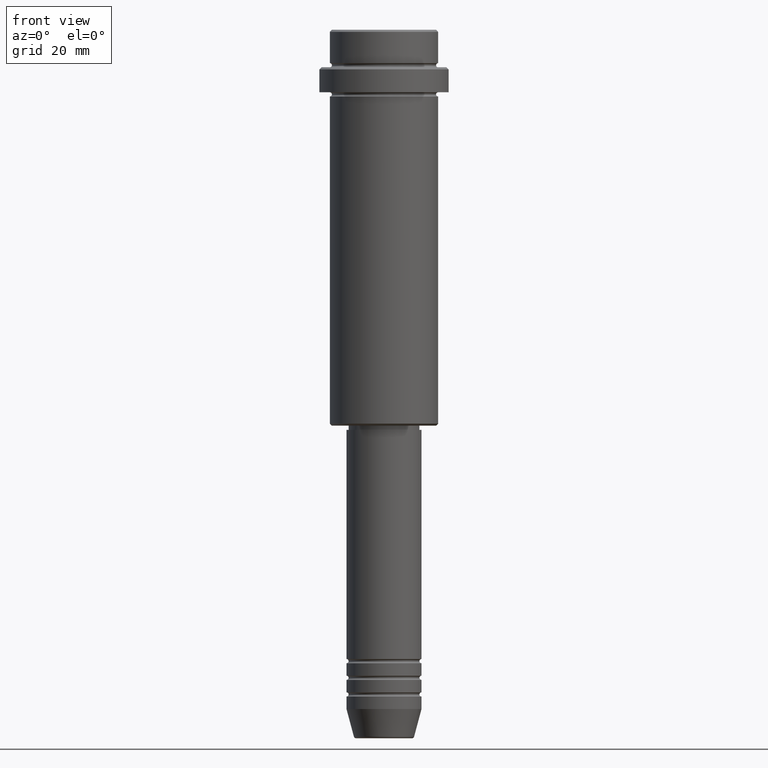
[diagram: clean part render]
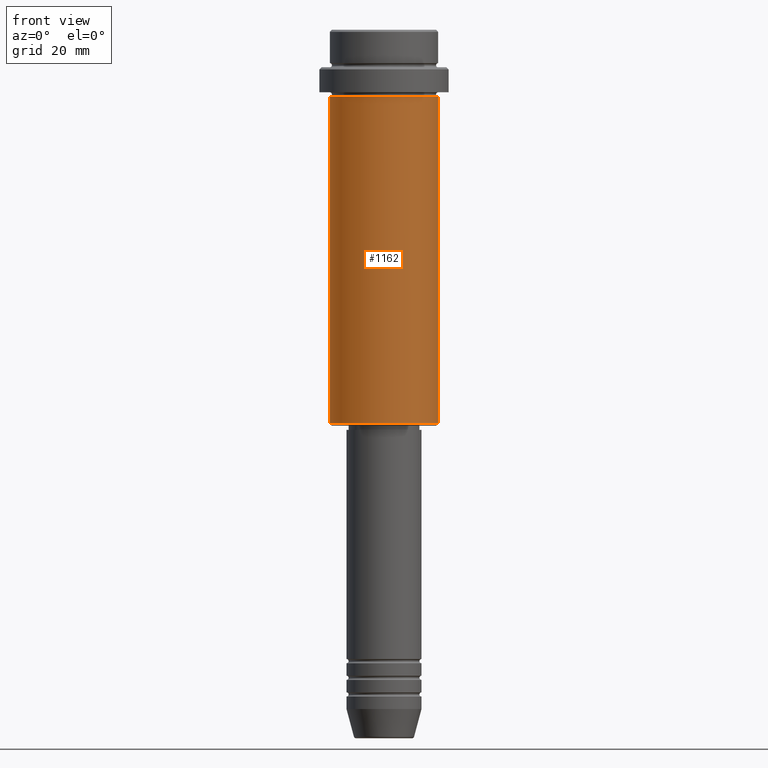
[diagram: same view with one face highlighted and labeled with its STEP entity id]
A machine part, front view. The second image highlights one B-rep face of the part: STEP entity #1162.
In plain terms, the highlighted cylindrical surface (partial cylindrical patch) has radius 13 mm, axis along (-0, -0, 1).
Its self-contained STEP definition (entity closure, byte-faithful):
#81 = EDGE_CURVE ( 'NONE', #410, #1291, #1138, .T. ) ;
#86 = ORIENTED_EDGE ( 'NONE', *, *, #1110, .F. ) ;
#107 = CARTESIAN_POINT ( 'NONE',  ( 0.000000000000000000, 0.000000000000000000, -94.50000000000002842 ) ) ;
#118 = AXIS2_PLACEMENT_3D ( 'NONE', #476, #811, #490 ) ;
#213 = DIRECTION ( 'NONE',  ( -0.000000000000000000, -0.000000000000000000, 1.000000000000000000 ) ) ;
#360 = VECTOR ( 'NONE', #387, 1000.000000000000000 ) ;
#361 = CARTESIAN_POINT ( 'NONE',  ( -13.00000000000000000, 1.592040838891559095E-15, -16.00000000000000000 ) ) ;
#370 = DIRECTION ( 'NONE',  ( -0.000000000000000000, -0.000000000000000000, 1.000000000000000000 ) ) ;
#387 = DIRECTION ( 'NONE',  ( -0.000000000000000000, -0.000000000000000000, 1.000000000000000000 ) ) ;
#398 = CARTESIAN_POINT ( 'NONE',  ( -13.00000000000000000, 1.592040838891559095E-15, 0.000000000000000000 ) ) ;
#410 = VERTEX_POINT ( 'NONE', #1027 ) ;
#423 = EDGE_CURVE ( 'NONE', #965, #1291, #1232, .T. ) ;
#476 = CARTESIAN_POINT ( 'NONE',  ( 0.000000000000000000, 0.000000000000000000, -16.00000000000000000 ) ) ;
#490 = DIRECTION ( 'NONE',  ( 1.000000000000000000, 0.000000000000000000, 0.000000000000000000 ) ) ;
#495 = VECTOR ( 'NONE', #370, 1000.000000000000000 ) ;
#511 = FACE_OUTER_BOUND ( 'NONE', #1295, .T. ) ;
#536 = CARTESIAN_POINT ( 'NONE',  ( -13.00000000000000000, 1.592040838891559095E-15, -94.50000000000002842 ) ) ;
#605 = CYLINDRICAL_SURFACE ( 'NONE', #803, 13.00000000000000000 ) ;
#663 = CIRCLE ( 'NONE', #1151, 13.00000000000000000 ) ;
#719 = CARTESIAN_POINT ( 'NONE',  ( 0.000000000000000000, 0.000000000000000000, 0.000000000000000000 ) ) ;
#764 = DIRECTION ( 'NONE',  ( -1.000000000000000000, 0.000000000000000000, 0.000000000000000000 ) ) ;
#791 = VERTEX_POINT ( 'NONE', #536 ) ;
#803 = AXIS2_PLACEMENT_3D ( 'NONE', #719, #933, #834 ) ;
#811 = DIRECTION ( 'NONE',  ( -0.000000000000000000, -0.000000000000000000, 1.000000000000000000 ) ) ;
#834 = DIRECTION ( 'NONE',  ( 1.000000000000000000, 0.000000000000000000, 0.000000000000000000 ) ) ;
#933 = DIRECTION ( 'NONE',  ( -0.000000000000000000, -0.000000000000000000, 1.000000000000000000 ) ) ;
#965 = VERTEX_POINT ( 'NONE', #361 ) ;
#1027 = CARTESIAN_POINT ( 'NONE',  ( 13.00000000000000000, 0.000000000000000000, -94.50000000000002842 ) ) ;
#1110 = EDGE_CURVE ( 'NONE', #791, #965, #1252, .T. ) ;
#1111 = ORIENTED_EDGE ( 'NONE', *, *, #81, .T. ) ;
#1138 = LINE ( 'NONE', #1355, #495 ) ;
#1151 = AXIS2_PLACEMENT_3D ( 'NONE', #107, #213, #764 ) ;
#1162 = ADVANCED_FACE ( 'NONE', ( #511 ), #605, .T. ) ;
#1232 = CIRCLE ( 'NONE', #118, 13.00000000000000000 ) ;
#1252 = LINE ( 'NONE', #398, #360 ) ;
#1263 = ORIENTED_EDGE ( 'NONE', *, *, #1267, .T. ) ;
#1267 = EDGE_CURVE ( 'NONE', #791, #410, #663, .T. ) ;
#1291 = VERTEX_POINT ( 'NONE', #1405 ) ;
#1295 = EDGE_LOOP ( 'NONE', ( #86, #1263, #1111, #1333 ) ) ;
#1333 = ORIENTED_EDGE ( 'NONE', *, *, #423, .F. ) ;
#1355 = CARTESIAN_POINT ( 'NONE',  ( 13.00000000000000000, 0.000000000000000000, 0.000000000000000000 ) ) ;
#1405 = CARTESIAN_POINT ( 'NONE',  ( 13.00000000000000000, 0.000000000000000000, -16.00000000000000000 ) ) ;